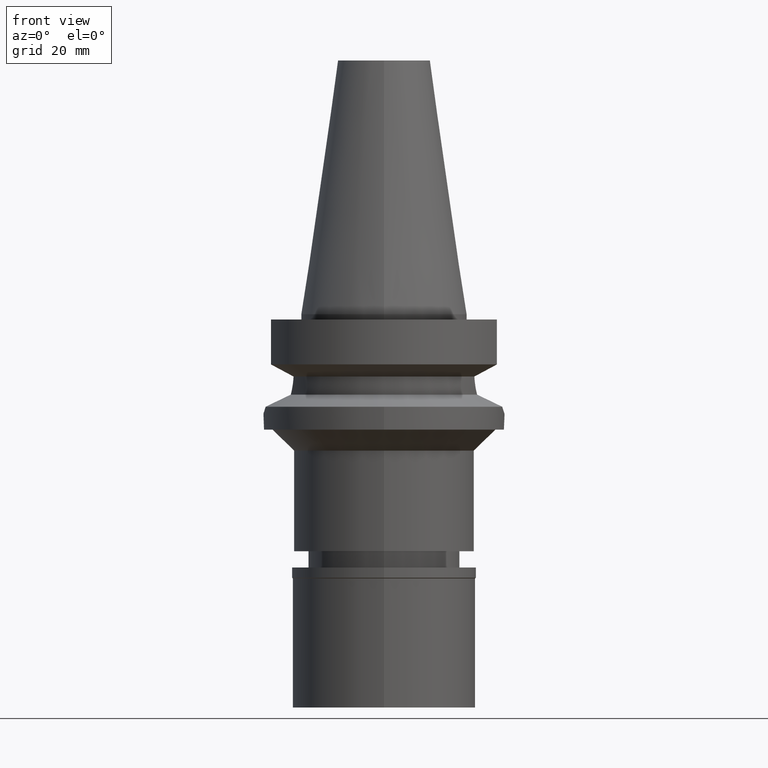
[diagram: clean part render]
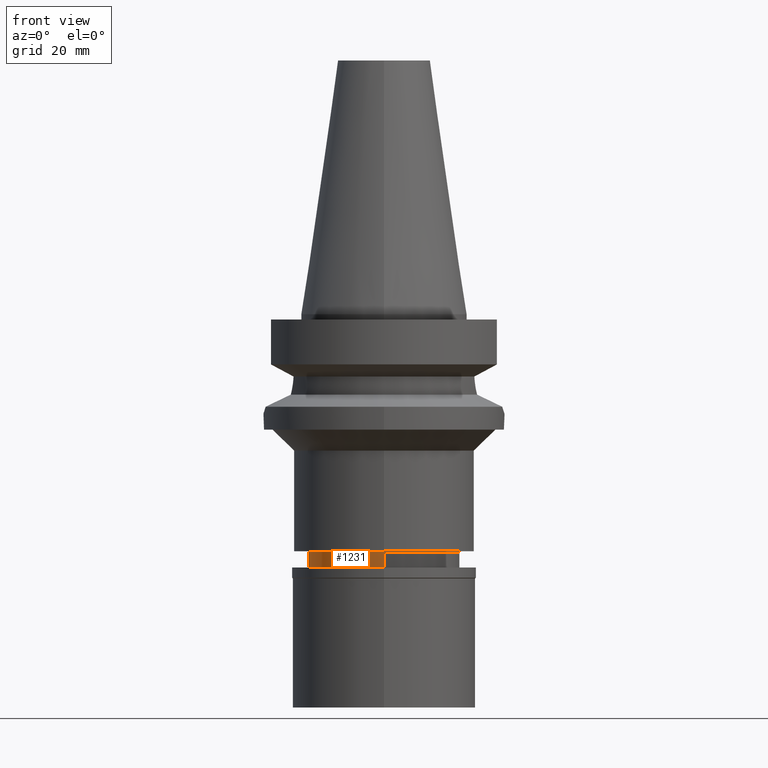
[diagram: same view with one face highlighted and labeled with its STEP entity id]
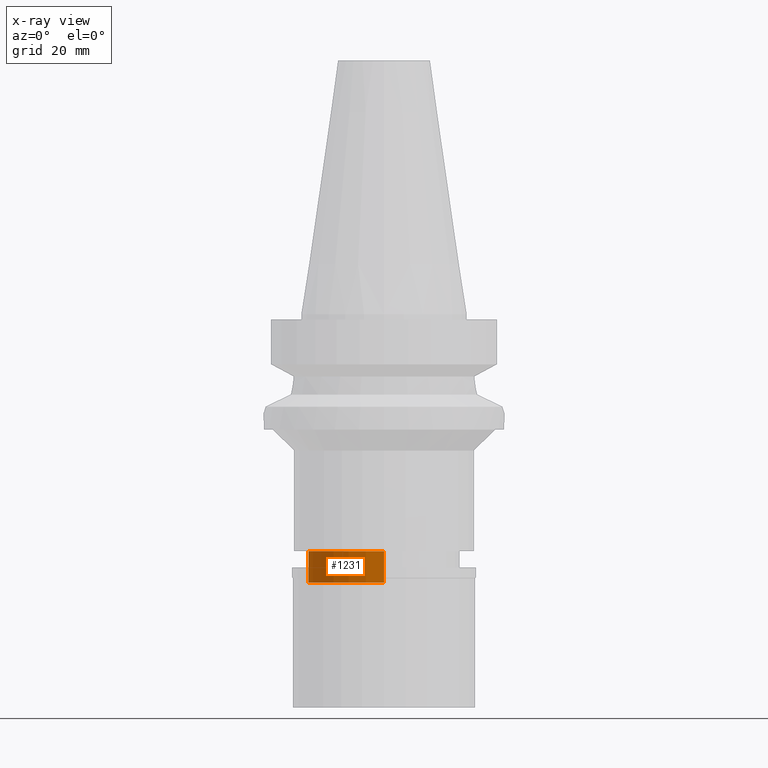
[diagram: x-ray of the same camera — body ghosted, the highlighted face saturated]
A machine part, front view. The second image highlights one B-rep face of the part: STEP entity #1231.
The next image is the same camera in x-ray: the body ghosted, the highlighted face saturated — about 0% of this face is hidden behind the body in this view.
In plain terms, the highlighted cylindrical surface (partial cylindrical patch) has radius 14.5 mm, axis along (0, 0, -1).
Its self-contained STEP definition (entity closure, byte-faithful):
#79 = VERTEX_POINT ( 'NONE', #2516 ) ;
#94 = EDGE_CURVE ( 'NONE', #2256, #568, #517, .T. ) ;
#151 = CARTESIAN_POINT ( 'NONE',  ( 0.0000000000000000000, 0.0000000000000000000, 54.01999999999999602 ) ) ;
#187 = VECTOR ( 'NONE', #223, 1000.000000000000000 ) ;
#198 = CARTESIAN_POINT ( 'NONE',  ( 0.0000000000000000000, 0.0000000000000000000, -51.20000000000000284 ) ) ;
#223 = DIRECTION ( 'NONE',  ( 0.0000000000000000000, 0.0000000000000000000, -1.000000000000000000 ) ) ;
#364 = DIRECTION ( 'NONE',  ( 0.0000000000000000000, 0.0000000000000000000, -1.000000000000000000 ) ) ;
#420 = AXIS2_PLACEMENT_3D ( 'NONE', #151, #364, #623 ) ;
#517 = CIRCLE ( 'NONE', #1738, 14.50000000000000000 ) ;
#551 = DIRECTION ( 'NONE',  ( 0.0000000000000000000, 0.0000000000000000000, -1.000000000000000000 ) ) ;
#568 = VERTEX_POINT ( 'NONE', #1206 ) ;
#623 = DIRECTION ( 'NONE',  ( 0.0000000000000000000, -1.000000000000000000, 0.0000000000000000000 ) ) ;
#755 = EDGE_CURVE ( 'NONE', #79, #1967, #756, .T. ) ;
#756 = CIRCLE ( 'NONE', #810, 14.50000000000000000 ) ;
#810 = AXIS2_PLACEMENT_3D ( 'NONE', #2464, #551, #1489 ) ;
#891 = LINE ( 'NONE', #1097, #2222 ) ;
#1097 = CARTESIAN_POINT ( 'NONE',  ( 0.0000000000000000000, 14.50000000000000000, -45.19999999999999574 ) ) ;
#1135 = DIRECTION ( 'NONE',  ( 0.0000000000000000000, 1.000000000000000000, 0.0000000000000000000 ) ) ;
#1153 = ORIENTED_EDGE ( 'NONE', *, *, #2458, .T. ) ;
#1194 = DIRECTION ( 'NONE',  ( 0.0000000000000000000, 0.0000000000000000000, 1.000000000000000000 ) ) ;
#1206 = CARTESIAN_POINT ( 'NONE',  ( 0.0000000000000000000, -14.50000000000000000, -51.20000000000000284 ) ) ;
#1217 = LINE ( 'NONE', #2304, #187 ) ;
#1231 = ADVANCED_FACE ( 'NONE', ( #2693 ), #2233, .T. ) ;
#1261 = ORIENTED_EDGE ( 'NONE', *, *, #2528, .F. ) ;
#1489 = DIRECTION ( 'NONE',  ( 0.0000000000000000000, -1.000000000000000000, 0.0000000000000000000 ) ) ;
#1621 = ORIENTED_EDGE ( 'NONE', *, *, #94, .T. ) ;
#1659 = CARTESIAN_POINT ( 'NONE',  ( 0.0000000000000000000, 14.50000000000000000, -45.19999999999999574 ) ) ;
#1738 = AXIS2_PLACEMENT_3D ( 'NONE', #198, #1194, #1135 ) ;
#1967 = VERTEX_POINT ( 'NONE', #1659 ) ;
#2112 = CARTESIAN_POINT ( 'NONE',  ( 0.0000000000000000000, 14.50000000000000000, -51.20000000000000284 ) ) ;
#2222 = VECTOR ( 'NONE', #2728, 1000.000000000000000 ) ;
#2233 = CYLINDRICAL_SURFACE ( 'NONE', #420, 14.50000000000000000 ) ;
#2241 = EDGE_LOOP ( 'NONE', ( #1621, #1261, #2636, #1153 ) ) ;
#2256 = VERTEX_POINT ( 'NONE', #2112 ) ;
#2304 = CARTESIAN_POINT ( 'NONE',  ( 0.0000000000000000000, -14.50000000000000000, -45.19999999999999574 ) ) ;
#2458 = EDGE_CURVE ( 'NONE', #1967, #2256, #891, .T. ) ;
#2464 = CARTESIAN_POINT ( 'NONE',  ( 0.0000000000000000000, 0.0000000000000000000, -45.19999999999999574 ) ) ;
#2516 = CARTESIAN_POINT ( 'NONE',  ( 0.0000000000000000000, -14.50000000000000000, -45.19999999999999574 ) ) ;
#2528 = EDGE_CURVE ( 'NONE', #79, #568, #1217, .T. ) ;
#2636 = ORIENTED_EDGE ( 'NONE', *, *, #755, .T. ) ;
#2693 = FACE_OUTER_BOUND ( 'NONE', #2241, .T. ) ;
#2728 = DIRECTION ( 'NONE',  ( 0.0000000000000000000, 0.0000000000000000000, -1.000000000000000000 ) ) ;